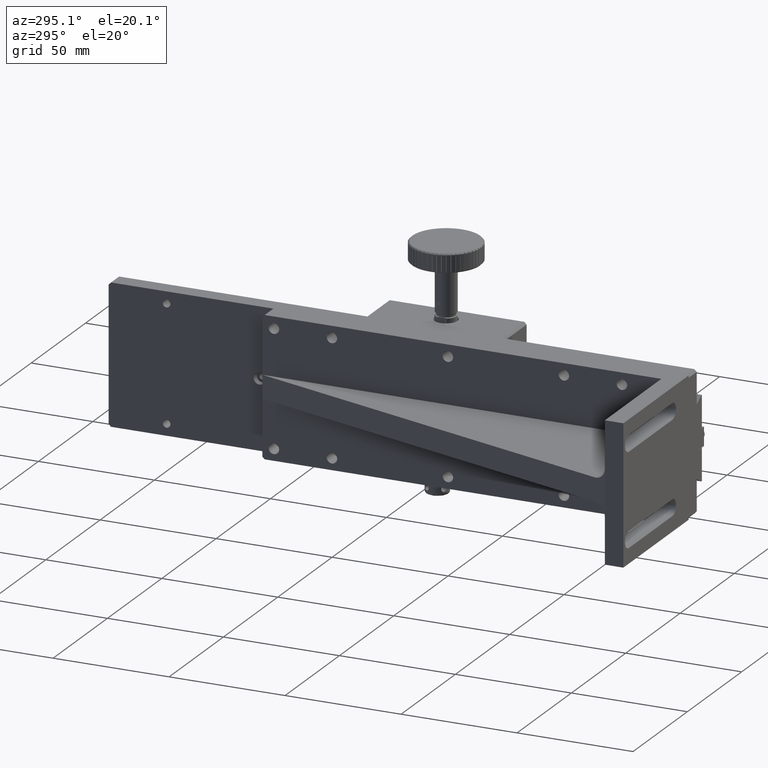
[diagram: clean part render]
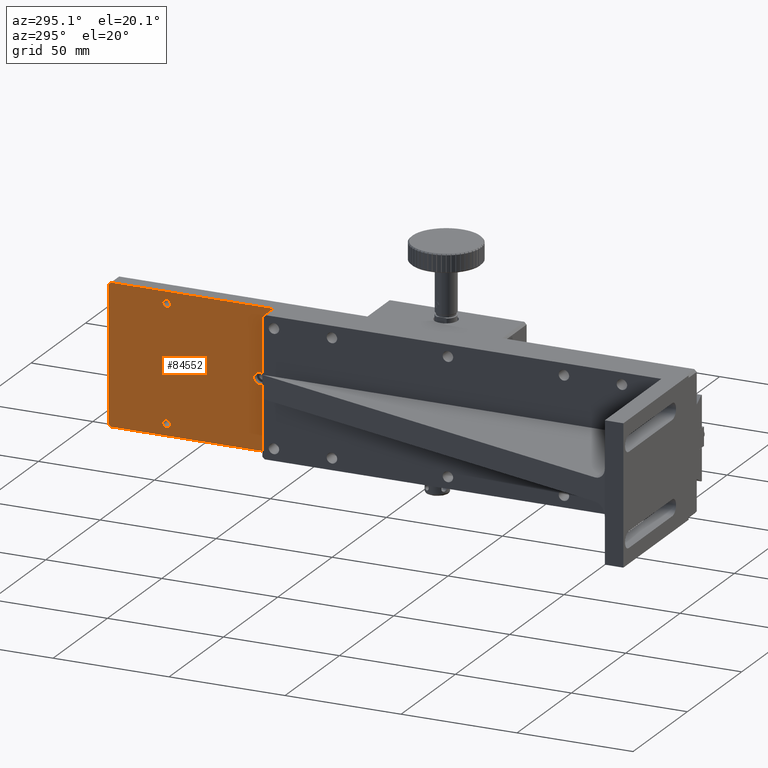
[diagram: same view with one face highlighted and labeled with its STEP entity id]
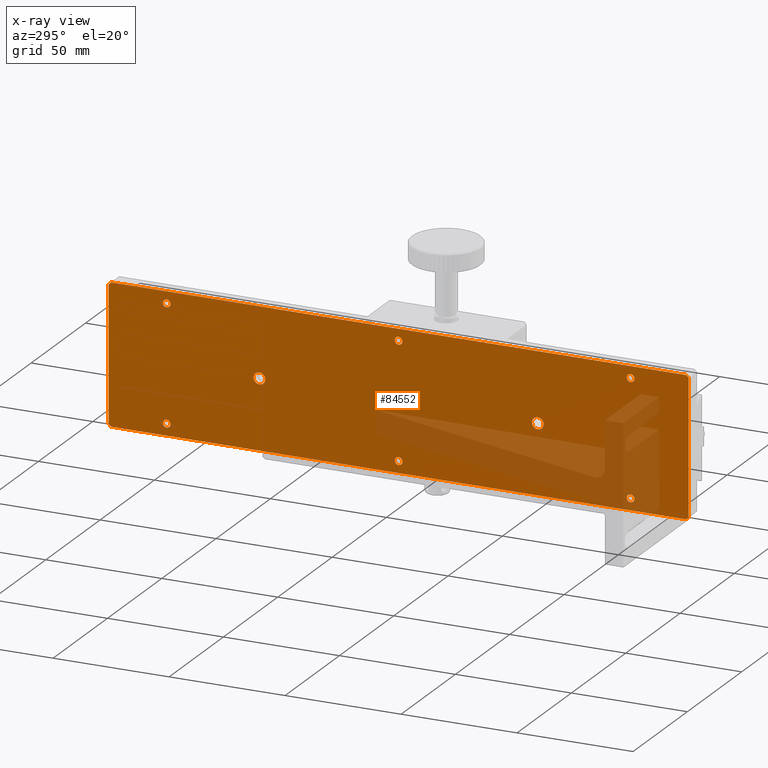
[diagram: x-ray of the same camera — body ghosted, the highlighted face saturated]
A machine part, auxiliary view. The second image highlights one B-rep face of the part: STEP entity #84552.
The next image is the same camera in x-ray: the body ghosted, the highlighted face saturated — about 18% of this face is hidden behind the body in this view.
In plain terms, the highlighted planar face has unit normal (1, 0, -0).
Its self-contained STEP definition (entity closure, byte-faithful):
#521 = CARTESIAN_POINT ( 'NONE',  ( 63.70955724085282412, 351.1604683425937310, 95.74087116684270882 ) ) ;
#678 = FACE_BOUND ( 'NONE', #87705, .T. ) ;
#1765 = FACE_OUTER_BOUND ( 'NONE', #75581, .T. ) ;
#2503 = DIRECTION ( 'NONE',  ( -8.410780489584597367E-15, 0.000000000000000000, -1.000000000000000000 ) ) ;
#3568 = ORIENTED_EDGE ( 'NONE', *, *, #62327, .F. ) ;
#3838 = LINE ( 'NONE', #72311, #77146 ) ;
#5199 = CARTESIAN_POINT ( 'NONE',  ( 63.70955724085297334, 126.1604683425937594, 91.74087116684262355 ) ) ;
#5586 = EDGE_CURVE ( 'NONE', #50300, #50300, #95071, .T. ) ;
#6229 = EDGE_CURVE ( 'NONE', #15273, #12526, #3838, .T. ) ;
#6746 = CARTESIAN_POINT ( 'NONE',  ( 63.70955724085303018, 251.1604683425937026, 120.7408711668426804 ) ) ;
#7706 = DIRECTION ( 'NONE',  ( -1.000000000000000000, -2.919741865770041198E-16, 6.871990563011585927E-15 ) ) ;
#8397 = DIRECTION ( 'NONE',  ( -1.000000000000000000, -2.919741865770041198E-16, 6.871990563011585927E-15 ) ) ;
#9433 = VERTEX_POINT ( 'NONE', #74119 ) ;
#10147 = AXIS2_PLACEMENT_3D ( 'NONE', #6746, #14629, #48836 ) ;
#10185 = VECTOR ( 'NONE', #103752, 1000.000000000000000 ) ;
#10845 = ORIENTED_EDGE ( 'NONE', *, *, #87111, .F. ) ;
#11929 = AXIS2_PLACEMENT_3D ( 'NONE', #521, #103702, #51044 ) ;
#12526 = VERTEX_POINT ( 'NONE', #88621 ) ;
#12689 = EDGE_LOOP ( 'NONE', ( #48366 ) ) ;
#12920 = CARTESIAN_POINT ( 'NONE',  ( 63.70955724085279570, 376.1604683425936742, 91.74087116684272303 ) ) ;
#13744 = DIRECTION ( 'NONE',  ( -8.410780489584597367E-15, 0.000000000000000000, -1.000000000000000000 ) ) ;
#14314 = AXIS2_PLACEMENT_3D ( 'NONE', #15270, #92129, #82582 ) ;
#14629 = DIRECTION ( 'NONE',  ( -1.000000000000000000, -2.919741865770041198E-16, 6.871990563011585927E-15 ) ) ;
#14927 = VECTOR ( 'NONE', #91988, 1000.000000000000000 ) ;
#15042 = VERTEX_POINT ( 'NONE', #46758 ) ;
#15270 = CARTESIAN_POINT ( 'NONE',  ( 63.70955724085321492, 251.1604683425937026, 145.7408711668426804 ) ) ;
#15273 = VERTEX_POINT ( 'NONE', #5199 ) ;
#15456 = DIRECTION ( 'NONE',  ( 0.000000000000000000, -0.7071067811865473507, -0.7071067811865477948 ) ) ;
#16281 = CARTESIAN_POINT ( 'NONE',  ( 63.70955724085301597, 311.1604683425936742, 120.7408711668426946 ) ) ;
#17452 = VERTEX_POINT ( 'NONE', #51675 ) ;
#17530 = DIRECTION ( 'NONE',  ( -6.871990563011585927E-15, 0.000000000000000000, -1.000000000000000000 ) ) ;
#18274 = CARTESIAN_POINT ( 'NONE',  ( 63.70955724085283833, 251.1604683425937594, 94.09087116684270313 ) ) ;
#18821 = EDGE_LOOP ( 'NONE', ( #50047 ) ) ;
#19668 = CIRCLE ( 'NONE', #14314, 1.649999999999984812 ) ;
#20084 = ORIENTED_EDGE ( 'NONE', *, *, #108900, .F. ) ;
#20130 = DIRECTION ( 'NONE',  ( 0.000000000000000000, 0.7071067811865477948, -0.7071067811865473507 ) ) ;
#21298 = VERTEX_POINT ( 'NONE', #38426 ) ;
#22098 = CIRCLE ( 'NONE', #31057, 2.500000000000002220 ) ;
#22444 = ORIENTED_EDGE ( 'NONE', *, *, #52089, .T. ) ;
#23029 = VERTEX_POINT ( 'NONE', #62432 ) ;
#24005 = EDGE_CURVE ( 'NONE', #36733, #36733, #70577, .T. ) ;
#24626 = VERTEX_POINT ( 'NONE', #67302 ) ;
#24736 = CARTESIAN_POINT ( 'NONE',  ( 63.70955724085279570, 376.1604683425936742, 90.74087116684263776 ) ) ;
#25926 = PLANE ( 'NONE',  #45884 ) ;
#25989 = DIRECTION ( 'NONE',  ( -1.000000000000000000, -2.919741865770041198E-16, 6.871990563011585927E-15 ) ) ;
#26042 = CARTESIAN_POINT ( 'NONE',  ( 63.70955724085327887, 127.1604683425937026, 150.7408711668426236 ) ) ;
#27581 = FACE_BOUND ( 'NONE', #110150, .T. ) ;
#27766 = ORIENTED_EDGE ( 'NONE', *, *, #66265, .T. ) ;
#27920 = EDGE_LOOP ( 'NONE', ( #68148 ) ) ;
#30576 = AXIS2_PLACEMENT_3D ( 'NONE', #41525, #73542, #39841 ) ;
#31057 = AXIS2_PLACEMENT_3D ( 'NONE', #102823, #25989, #34407 ) ;
#32398 = CIRCLE ( 'NONE', #57474, 1.649999999999984812 ) ;
#34407 = DIRECTION ( 'NONE',  ( 5.551115123125777969E-15, 0.000000000000000000, 1.000000000000000000 ) ) ;
#34427 = ORIENTED_EDGE ( 'NONE', *, *, #6229, .F. ) ;
#34461 = EDGE_CURVE ( 'NONE', #21298, #15042, #61041, .T. ) ;
#34885 = FACE_BOUND ( 'NONE', #42315, .T. ) ;
#35442 = FACE_BOUND ( 'NONE', #104926, .T. ) ;
#35926 = DIRECTION ( 'NONE',  ( 0.000000000000000000, -0.7071067811865473507, -0.7071067811865477948 ) ) ;
#36733 = VERTEX_POINT ( 'NONE', #18274 ) ;
#38082 = EDGE_CURVE ( 'NONE', #12526, #9433, #109963, .T. ) ;
#38426 = CARTESIAN_POINT ( 'NONE',  ( 63.70955724085289518, 376.1604683425936742, 91.74087116684270882 ) ) ;
#39244 = VERTEX_POINT ( 'NONE', #63958 ) ;
#39841 = DIRECTION ( 'NONE',  ( -8.410780489584597367E-15, 0.000000000000000000, -1.000000000000000000 ) ) ;
#40923 = LINE ( 'NONE', #74605, #14927 ) ;
#41525 = CARTESIAN_POINT ( 'NONE',  ( 63.70955724085318650, 351.1604683425937310, 145.7408711668427088 ) ) ;
#41936 = DIRECTION ( 'NONE',  ( -8.410780489584597367E-15, 0.000000000000000000, -1.000000000000000000 ) ) ;
#42315 = EDGE_LOOP ( 'NONE', ( #3568 ) ) ;
#43673 = VERTEX_POINT ( 'NONE', #77348 ) ;
#44904 = VERTEX_POINT ( 'NONE', #54430 ) ;
#45884 = AXIS2_PLACEMENT_3D ( 'NONE', #94375, #79211, #17530 ) ;
#46746 = VECTOR ( 'NONE', #15456, 1000.000000000000000 ) ;
#46758 = CARTESIAN_POINT ( 'NONE',  ( 63.70955724085320071, 376.1604683425936742, 149.7408711668427088 ) ) ;
#48366 = ORIENTED_EDGE ( 'NONE', *, *, #5586, .F. ) ;
#48572 = DIRECTION ( 'NONE',  ( -6.871990563011585927E-15, 0.000000000000000000, -1.000000000000000000 ) ) ;
#48836 = DIRECTION ( 'NONE',  ( 5.551115123125777969E-15, 0.000000000000000000, 1.000000000000000000 ) ) ;
#50047 = ORIENTED_EDGE ( 'NONE', *, *, #105081, .F. ) ;
#50300 = VERTEX_POINT ( 'NONE', #92939 ) ;
#51044 = DIRECTION ( 'NONE',  ( -8.410780489584597367E-15, 0.000000000000000000, -1.000000000000000000 ) ) ;
#51315 = LINE ( 'NONE', #26042, #46746 ) ;
#51664 = ORIENTED_EDGE ( 'NONE', *, *, #85519, .F. ) ;
#51675 = CARTESIAN_POINT ( 'NONE',  ( 63.70955724085307281, 191.1604683425937026, 123.2408711668426520 ) ) ;
#52067 = CARTESIAN_POINT ( 'NONE',  ( 63.70955724085321492, 376.1604683425936742, 150.7408711668427088 ) ) ;
#52089 = EDGE_CURVE ( 'NONE', #21298, #9433, #71857, .T. ) ;
#52300 = FACE_BOUND ( 'NONE', #79797, .T. ) ;
#54430 = CARTESIAN_POINT ( 'NONE',  ( 63.70955724085304439, 251.1604683425937026, 123.2408711668426804 ) ) ;
#54930 = AXIS2_PLACEMENT_3D ( 'NONE', #16281, #8397, #76858 ) ;
#56211 = AXIS2_PLACEMENT_3D ( 'NONE', #79963, #80529, #13744 ) ;
#56421 = LINE ( 'NONE', #99585, #108693 ) ;
#57474 = AXIS2_PLACEMENT_3D ( 'NONE', #110855, #7706, #41936 ) ;
#58097 = CARTESIAN_POINT ( 'NONE',  ( 63.70955724085321492, 376.1604683425936742, 150.7408711668427088 ) ) ;
#58153 = CARTESIAN_POINT ( 'NONE',  ( 63.70955724085327887, 126.1604683425937310, 149.7408711668425951 ) ) ;
#58545 = CIRCLE ( 'NONE', #10147, 2.500000000000002220 ) ;
#59440 = ORIENTED_EDGE ( 'NONE', *, *, #38082, .F. ) ;
#60723 = FACE_BOUND ( 'NONE', #88729, .T. ) ;
#61041 = LINE ( 'NONE', #52067, #98110 ) ;
#61091 = ORIENTED_EDGE ( 'NONE', *, *, #68121, .F. ) ;
#61875 = VERTEX_POINT ( 'NONE', #58153 ) ;
#62327 = EDGE_CURVE ( 'NONE', #67431, #67431, #70266, .T. ) ;
#62432 = CARTESIAN_POINT ( 'NONE',  ( 63.70955724085327887, 127.1604683425937026, 150.7408711668426520 ) ) ;
#63958 = CARTESIAN_POINT ( 'NONE',  ( 63.70955724085303018, 311.1604683425936742, 123.2408711668426946 ) ) ;
#66265 = EDGE_CURVE ( 'NONE', #100195, #15042, #40923, .T. ) ;
#66756 = AXIS2_PLACEMENT_3D ( 'NONE', #104586, #79389, #2503 ) ;
#67302 = CARTESIAN_POINT ( 'NONE',  ( 63.70955724085286676, 151.1604683425937310, 94.09087116684267471 ) ) ;
#67431 = VERTEX_POINT ( 'NONE', #93214 ) ;
#67642 = LINE ( 'NONE', #58097, #74742 ) ;
#68121 = EDGE_CURVE ( 'NONE', #17452, #17452, #22098, .T. ) ;
#68148 = ORIENTED_EDGE ( 'NONE', *, *, #107569, .F. ) ;
#68418 = ORIENTED_EDGE ( 'NONE', *, *, #34461, .F. ) ;
#70266 = CIRCLE ( 'NONE', #66756, 1.649999999999984812 ) ;
#70577 = CIRCLE ( 'NONE', #56211, 1.649999999999984812 ) ;
#71373 = FACE_BOUND ( 'NONE', #18821, .T. ) ;
#71857 = LINE ( 'NONE', #12920, #89527 ) ;
#72311 = CARTESIAN_POINT ( 'NONE',  ( 63.70955724085288097, 127.1604683425937310, 90.74087116684263776 ) ) ;
#73542 = DIRECTION ( 'NONE',  ( -1.000000000000000000, -2.919741865770041198E-16, 6.871990563011585927E-15 ) ) ;
#74119 = CARTESIAN_POINT ( 'NONE',  ( 63.70955724085279570, 375.1604683425936173, 90.74087116684270882 ) ) ;
#74500 = ORIENTED_EDGE ( 'NONE', *, *, #80576, .F. ) ;
#74605 = CARTESIAN_POINT ( 'NONE',  ( 63.70955724085321492, 376.1604683425936742, 149.7408711668427088 ) ) ;
#74742 = VECTOR ( 'NONE', #100700, 1000.000000000000000 ) ;
#75581 = EDGE_LOOP ( 'NONE', ( #20084, #83288, #27766, #68418, #22444, #59440, #34427, #10845 ) ) ;
#76858 = DIRECTION ( 'NONE',  ( 5.551115123125777969E-15, 0.000000000000000000, 1.000000000000000000 ) ) ;
#76873 = ORIENTED_EDGE ( 'NONE', *, *, #80680, .F. ) ;
#77146 = VECTOR ( 'NONE', #20130, 1000.000000000000000 ) ;
#77348 = CARTESIAN_POINT ( 'NONE',  ( 63.70955724085320071, 251.1604683425937026, 144.0908711668426747 ) ) ;
#79113 = ORIENTED_EDGE ( 'NONE', *, *, #24005, .F. ) ;
#79125 = VERTEX_POINT ( 'NONE', #86991 ) ;
#79211 = DIRECTION ( 'NONE',  ( 1.000000000000000000, 2.919741865770041198E-16, -6.871990563011585927E-15 ) ) ;
#79389 = DIRECTION ( 'NONE',  ( -1.000000000000000000, -2.919741865770041198E-16, 6.871990563011585927E-15 ) ) ;
#79797 = EDGE_LOOP ( 'NONE', ( #76873 ) ) ;
#79963 = CARTESIAN_POINT ( 'NONE',  ( 63.70955724085285254, 251.1604683425937594, 95.74087116684268040 ) ) ;
#80529 = DIRECTION ( 'NONE',  ( -1.000000000000000000, -2.919741865770041198E-16, 6.871990563011585927E-15 ) ) ;
#80576 = EDGE_CURVE ( 'NONE', #44904, #44904, #58545, .T. ) ;
#80680 = EDGE_CURVE ( 'NONE', #79125, #79125, #85457, .T. ) ;
#81145 = CARTESIAN_POINT ( 'NONE',  ( 63.70955724085322913, 375.1604683425936742, 150.7408711668427088 ) ) ;
#82582 = DIRECTION ( 'NONE',  ( -8.410780489584597367E-15, 0.000000000000000000, -1.000000000000000000 ) ) ;
#82596 = EDGE_CURVE ( 'NONE', #100195, #23029, #67642, .T. ) ;
#83288 = ORIENTED_EDGE ( 'NONE', *, *, #82596, .F. ) ;
#84552 = ADVANCED_FACE ( 'NONE', ( #1765, #60723, #27581, #678, #34885, #104409, #85977, #71373, #35442, #52300 ), #25926, .F. ) ;
#85457 = CIRCLE ( 'NONE', #11929, 1.649999999999984812 ) ;
#85519 = EDGE_CURVE ( 'NONE', #39244, #39244, #108616, .T. ) ;
#85977 = FACE_BOUND ( 'NONE', #12689, .T. ) ;
#86839 = DIRECTION ( 'NONE',  ( 6.871990563011585927E-15, -0.000000000000000000, 1.000000000000000000 ) ) ;
#86991 = CARTESIAN_POINT ( 'NONE',  ( 63.70955724085280991, 351.1604683425937310, 94.09087116684273155 ) ) ;
#87111 = EDGE_CURVE ( 'NONE', #61875, #15273, #56421, .T. ) ;
#87705 = EDGE_LOOP ( 'NONE', ( #74500 ) ) ;
#88621 = CARTESIAN_POINT ( 'NONE',  ( 63.70955724085286676, 127.1604683425937310, 90.74087116684263776 ) ) ;
#88729 = EDGE_LOOP ( 'NONE', ( #61091 ) ) ;
#89527 = VECTOR ( 'NONE', #35926, 1000.000000000000000 ) ;
#91988 = DIRECTION ( 'NONE',  ( 0.000000000000000000, 0.7071067811865477948, -0.7071067811865473507 ) ) ;
#92129 = DIRECTION ( 'NONE',  ( -1.000000000000000000, -2.919741865770041198E-16, 6.871990563011585927E-15 ) ) ;
#92939 = CARTESIAN_POINT ( 'NONE',  ( 63.70955724085317229, 351.1604683425937310, 144.0908711668427031 ) ) ;
#93214 = CARTESIAN_POINT ( 'NONE',  ( 63.70955724085322913, 151.1604683425937310, 144.0908711668426463 ) ) ;
#94375 = CARTESIAN_POINT ( 'NONE',  ( 63.70955724085321492, 376.1604683425936742, 150.7408711668427088 ) ) ;
#95071 = CIRCLE ( 'NONE', #30576, 1.649999999999984812 ) ;
#98110 = VECTOR ( 'NONE', #86839, 1000.000000000000000 ) ;
#99585 = CARTESIAN_POINT ( 'NONE',  ( 63.70955724085327887, 126.1604683425937310, 150.7408711668427088 ) ) ;
#100195 = VERTEX_POINT ( 'NONE', #81145 ) ;
#100700 = DIRECTION ( 'NONE',  ( 2.919741865770041198E-16, -1.000000000000000000, -2.006443854800156254E-30 ) ) ;
#102823 = CARTESIAN_POINT ( 'NONE',  ( 63.70955724085305860, 191.1604683425937026, 120.7408711668426520 ) ) ;
#103702 = DIRECTION ( 'NONE',  ( -1.000000000000000000, -2.919741865770041198E-16, 6.871990563011585927E-15 ) ) ;
#103752 = DIRECTION ( 'NONE',  ( -2.919741865770041198E-16, 1.000000000000000000, 2.006443854800156254E-30 ) ) ;
#104409 = FACE_BOUND ( 'NONE', #27920, .T. ) ;
#104586 = CARTESIAN_POINT ( 'NONE',  ( 63.70955724085324334, 151.1604683425937310, 145.7408711668426520 ) ) ;
#104926 = EDGE_LOOP ( 'NONE', ( #79113 ) ) ;
#105081 = EDGE_CURVE ( 'NONE', #43673, #43673, #19668, .T. ) ;
#107569 = EDGE_CURVE ( 'NONE', #24626, #24626, #32398, .T. ) ;
#108616 = CIRCLE ( 'NONE', #54930, 2.500000000000002220 ) ;
#108693 = VECTOR ( 'NONE', #48572, 1000.000000000000000 ) ;
#108900 = EDGE_CURVE ( 'NONE', #23029, #61875, #51315, .T. ) ;
#109963 = LINE ( 'NONE', #24736, #10185 ) ;
#110150 = EDGE_LOOP ( 'NONE', ( #51664 ) ) ;
#110855 = CARTESIAN_POINT ( 'NONE',  ( 63.70955724085288097, 151.1604683425937310, 95.74087116684265197 ) ) ;